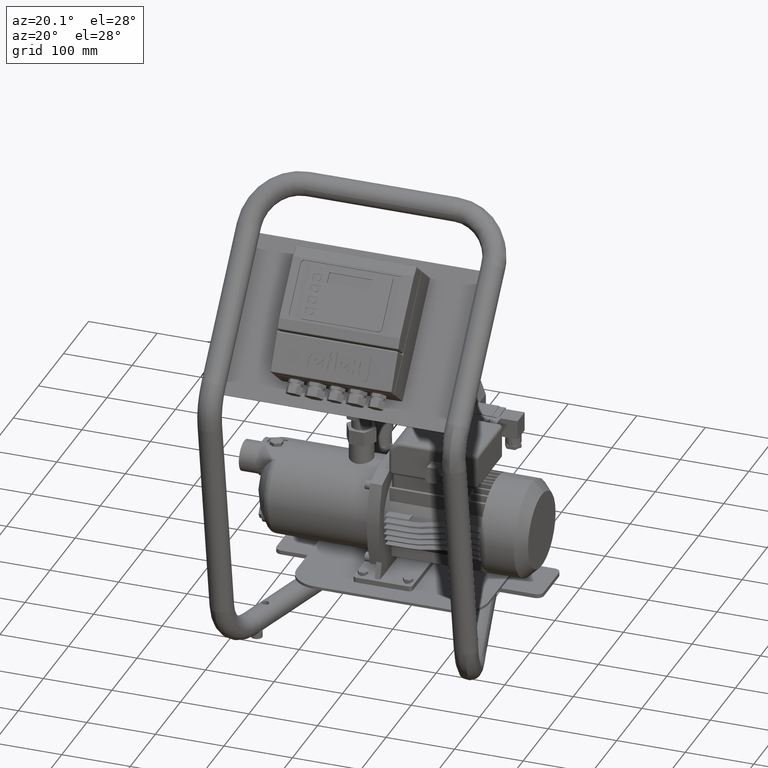
[diagram: clean part render]
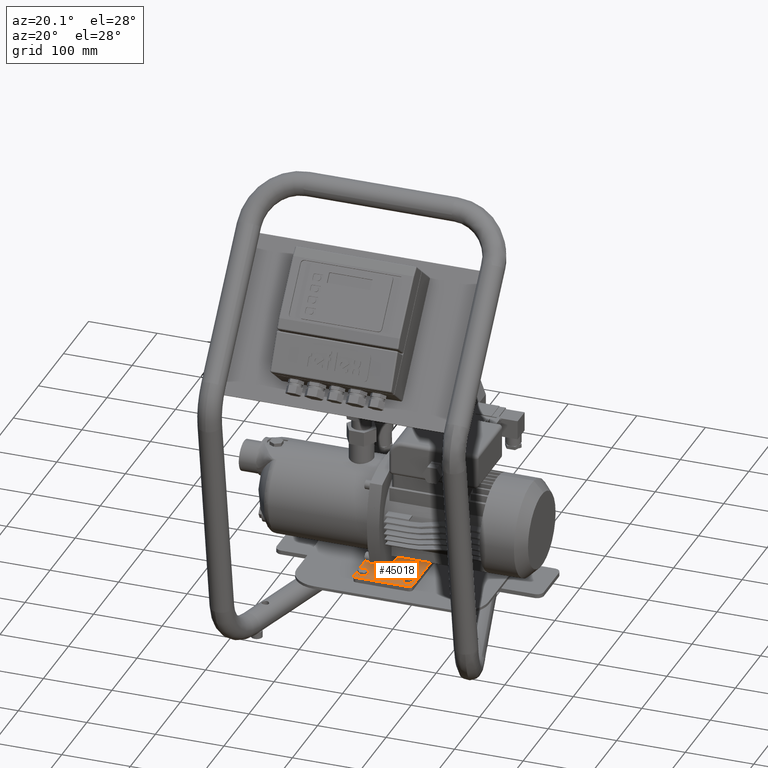
[diagram: same view with one face highlighted and labeled with its STEP entity id]
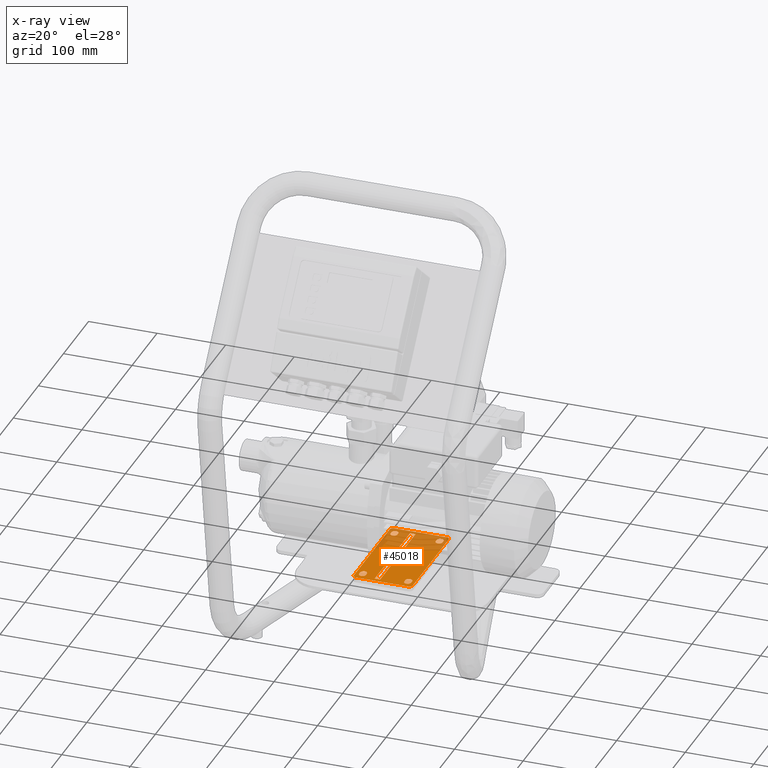
[diagram: x-ray of the same camera — body ghosted, the highlighted face saturated]
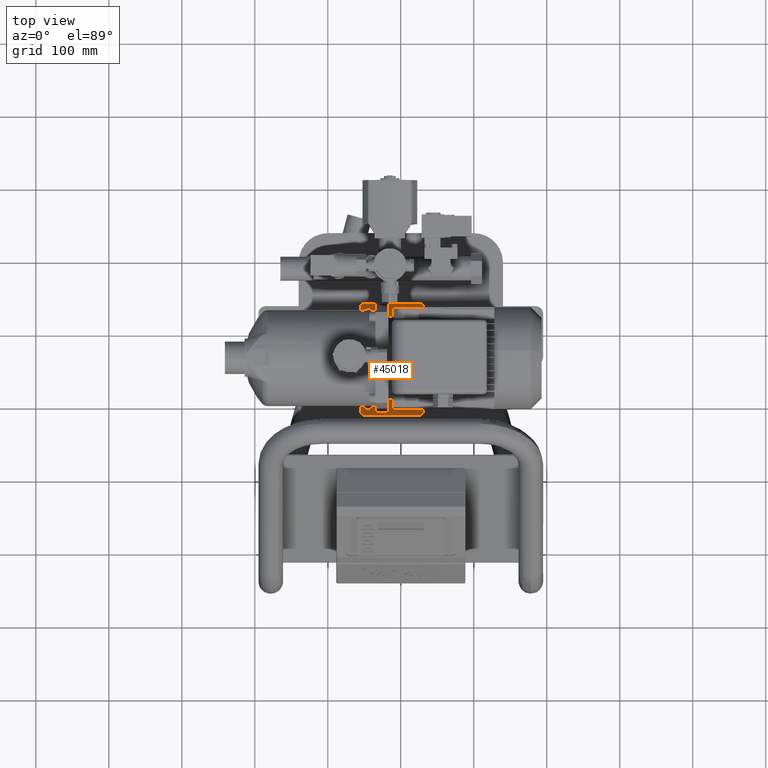
[diagram: same view with one face highlighted and labeled with its STEP entity id]
A machine part, auxiliary view. The second image highlights one B-rep face of the part: STEP entity #45018.
The next image is the same camera in x-ray: the body ghosted, the highlighted face saturated — about 32% of this face is hidden behind the body in this view.
A second angle (top view) of the same face is appended — the face is thin or edge-on in the first view.
In plain terms, the highlighted planar face has unit normal (0, 0, 1).
Its self-contained STEP definition (entity closure, byte-faithful):
#43827=CARTESIAN_POINT('',(-17.000000000000036,-103.500000000000000,60.500000000000014));
#43828=VERTEX_POINT('',#43827);
#43836=CARTESIAN_POINT('',(-25.000000000000036,-103.500000000000000,60.500000000000014));
#43837=VERTEX_POINT('',#43836);
#43844=CARTESIAN_POINT('',(-17.000000000000036,-103.500000000000000,60.500000000000014));
#43845=DIRECTION('',(-1.0,0.0,0.0));
#43846=VECTOR('',#43845,8.0);
#43847=LINE('',#43844,#43846);
#43848=EDGE_CURVE('',#43828,#43837,#43847,.T.);
#43891=CARTESIAN_POINT('',(-17.000000000000043,37.500000000000014,60.499999999999972));
#43892=VERTEX_POINT('',#43891);
#43899=CARTESIAN_POINT('',(-25.000000000000050,37.500000000000014,60.499999999999972));
#43900=VERTEX_POINT('',#43899);
#43901=CARTESIAN_POINT('',(-25.000000000000050,37.500000000000014,60.499999999999972));
#43902=DIRECTION('',(1.0,0.0,0.0));
#43903=VECTOR('',#43902,8.000000000000007);
#43904=LINE('',#43901,#43903);
#43905=EDGE_CURVE('',#43900,#43892,#43904,.T.);
#43923=CARTESIAN_POINT('',(-17.000000000000043,37.500000000000014,60.499999999999972));
#43924=DIRECTION('',(0.0,-1.0,0.0));
#43925=VECTOR('',#43924,141.0);
#43926=LINE('',#43923,#43925);
#43927=EDGE_CURVE('',#43892,#43828,#43926,.T.);
#43945=CARTESIAN_POINT('',(-25.000000000000036,-103.500000000000000,60.500000000000014));
#43946=DIRECTION('',(0.0,1.0,0.0));
#43947=VECTOR('',#43946,141.0);
#43948=LINE('',#43945,#43947);
#43949=EDGE_CURVE('',#43837,#43900,#43948,.T.);
#43974=CARTESIAN_POINT('',(-55.000000000000142,-104.500000000000000,60.500000000000028));
#43975=VERTEX_POINT('',#43974);
#43982=CARTESIAN_POINT('',(-55.000000000000149,38.500000000000028,60.500000000000014));
#43983=VERTEX_POINT('',#43982);
#43984=CARTESIAN_POINT('',(-55.000000000000142,-104.500000000000000,60.500000000000028));
#43985=DIRECTION('',(0.0,1.0,0.0));
#43986=VECTOR('',#43985,143.000000000000030);
#43987=LINE('',#43984,#43986);
#43988=EDGE_CURVE('',#43975,#43983,#43987,.T.);
#44013=CARTESIAN_POINT('',(-50.000000000000128,-109.500000000000000,60.500000000000028));
#44014=VERTEX_POINT('',#44013);
#44021=CARTESIAN_POINT('',(-50.000000000000142,-104.500000000000000,60.500000000000028));
#44022=DIRECTION('',(-6.123032E-017,-6.123032E-017,-1.000000000000000));
#44023=DIRECTION('',(-0.707106781186547,-0.707106781186548,8.659275E-017));
#44024=AXIS2_PLACEMENT_3D('',#44021,#44022,#44023);
#44025=CIRCLE('',#44024,4.999999999999999);
#44026=EDGE_CURVE('',#44014,#43975,#44025,.T.);
#44214=CARTESIAN_POINT('',(-50.000000000000149,43.500000000000028,60.500000000000014));
#44215=VERTEX_POINT('',#44214);
#44216=CARTESIAN_POINT('',(-50.000000000000149,38.500000000000028,60.500000000000014));
#44217=DIRECTION('',(6.123032E-017,-6.123032E-017,-1.000000000000000));
#44218=DIRECTION('',(-0.707106781186548,0.707106781186547,-8.659275E-017));
#44219=AXIS2_PLACEMENT_3D('',#44216,#44217,#44218);
#44220=CIRCLE('',#44219,4.999999999999999);
#44221=EDGE_CURVE('',#43983,#44215,#44220,.T.);
#44323=CARTESIAN_POINT('',(-50.000000000000128,27.499999999999986,60.500000000000014));
#44324=VERTEX_POINT('',#44323);
#44331=CARTESIAN_POINT('',(-40.000000000000128,27.499999999999986,60.500000000000014));
#44332=VERTEX_POINT('',#44331);
#44333=CARTESIAN_POINT('',(-45.000000000000142,27.499999999999986,60.500000000000014));
#44334=DIRECTION('',(0.0,0.0,1.0));
#44335=DIRECTION('',(-1.0,0.0,0.0));
#44336=AXIS2_PLACEMENT_3D('',#44333,#44334,#44335);
#44337=CIRCLE('',#44336,4.999999999999998);
#44338=EDGE_CURVE('',#44324,#44332,#44337,.T.);
#44356=CARTESIAN_POINT('',(-40.000000000000128,31.500000000000028,60.500000000000014));
#44357=VERTEX_POINT('',#44356);
#44358=CARTESIAN_POINT('',(-40.000000000000128,27.499999999999986,60.500000000000014));
#44359=DIRECTION('',(0.0,1.0,0.0));
#44360=VECTOR('',#44359,4.000000000000043);
#44361=LINE('',#44358,#44360);
#44362=EDGE_CURVE('',#44332,#44357,#44361,.T.);
#44381=CARTESIAN_POINT('',(-50.000000000000128,31.500000000000028,60.500000000000014));
#44382=VERTEX_POINT('',#44381);
#44389=CARTESIAN_POINT('',(-50.000000000000128,31.500000000000028,60.500000000000014));
#44390=DIRECTION('',(0.0,-1.0,0.0));
#44391=VECTOR('',#44390,4.000000000000043);
#44392=LINE('',#44389,#44391);
#44393=EDGE_CURVE('',#44382,#44324,#44392,.T.);
#44406=CARTESIAN_POINT('',(-45.000000000000128,31.500000000000028,60.500000000000014));
#44407=DIRECTION('',(0.0,0.0,1.0));
#44408=DIRECTION('',(1.0,0.0,0.0));
#44409=AXIS2_PLACEMENT_3D('',#44406,#44407,#44408);
#44410=CIRCLE('',#44409,4.999999999999998);
#44411=EDGE_CURVE('',#44357,#44382,#44410,.T.);
#44466=CARTESIAN_POINT('',(-50.000000000000114,-97.500000000000000,60.500000000000028));
#44467=VERTEX_POINT('',#44466);
#44474=CARTESIAN_POINT('',(-40.000000000000114,-97.500000000000000,60.500000000000028));
#44475=VERTEX_POINT('',#44474);
#44476=CARTESIAN_POINT('',(-45.000000000000114,-97.500000000000000,60.500000000000028));
#44477=DIRECTION('',(0.0,0.0,1.0));
#44478=DIRECTION('',(1.0,0.0,0.0));
#44479=AXIS2_PLACEMENT_3D('',#44476,#44477,#44478);
#44480=CIRCLE('',#44479,4.999999999999998);
#44481=EDGE_CURVE('',#44467,#44475,#44480,.T.);
#44499=CARTESIAN_POINT('',(-40.000000000000142,-93.500000000000000,60.500000000000028));
#44500=VERTEX_POINT('',#44499);
#44501=CARTESIAN_POINT('',(-40.000000000000114,-97.500000000000000,60.500000000000028));
#44502=DIRECTION('',(0.0,1.0,0.0));
#44503=VECTOR('',#44502,4.0);
#44504=LINE('',#44501,#44503);
#44505=EDGE_CURVE('',#44475,#44500,#44504,.T.);
#44524=CARTESIAN_POINT('',(-50.000000000000128,-93.500000000000000,60.500000000000028));
#44525=VERTEX_POINT('',#44524);
#44532=CARTESIAN_POINT('',(-50.000000000000128,-93.500000000000000,60.500000000000028));
#44533=DIRECTION('',(0.0,-1.0,0.0));
#44534=VECTOR('',#44533,4.0);
#44535=LINE('',#44532,#44534);
#44536=EDGE_CURVE('',#44525,#44467,#44535,.T.);
#44549=CARTESIAN_POINT('',(-45.000000000000128,-93.500000000000000,60.500000000000028));
#44550=DIRECTION('',(0.0,0.0,1.0));
#44551=DIRECTION('',(-1.0,0.0,0.0));
#44552=AXIS2_PLACEMENT_3D('',#44549,#44550,#44551);
#44553=CIRCLE('',#44552,4.999999999999998);
#44554=EDGE_CURVE('',#44500,#44525,#44553,.T.);
#44700=CARTESIAN_POINT('',(25.999999999999957,-109.500000000000010,60.500000000000000));
#44701=VERTEX_POINT('',#44700);
#44708=CARTESIAN_POINT('',(25.999999999999957,-109.500000000000010,60.500000000000000));
#44709=DIRECTION('',(-1.0,0.0,0.0));
#44710=VECTOR('',#44709,76.000000000000085);
#44711=LINE('',#44708,#44710);
#44712=EDGE_CURVE('',#44701,#44014,#44711,.T.);
#44724=CARTESIAN_POINT('',(30.999999999999957,-104.500000000000010,60.500000000000000));
#44725=VERTEX_POINT('',#44724);
#44732=CARTESIAN_POINT('',(25.999999999999957,-104.500000000000010,60.500000000000000));
#44733=DIRECTION('',(6.123032E-017,-6.123032E-017,-1.000000000000000));
#44734=DIRECTION('',(0.707106781186548,-0.707106781186547,8.659275E-017));
#44735=AXIS2_PLACEMENT_3D('',#44732,#44733,#44734);
#44736=CIRCLE('',#44735,4.999999999999999);
#44737=EDGE_CURVE('',#44725,#44701,#44736,.T.);
#44749=CARTESIAN_POINT('',(30.999999999999957,38.500000000000043,60.499999999999986));
#44750=VERTEX_POINT('',#44749);
#44757=CARTESIAN_POINT('',(30.999999999999957,38.500000000000043,60.499999999999986));
#44758=DIRECTION('',(0.0,-1.0,0.0));
#44759=VECTOR('',#44758,143.000000000000060);
#44760=LINE('',#44757,#44759);
#44761=EDGE_CURVE('',#44750,#44725,#44760,.T.);
#44900=CARTESIAN_POINT('',(-12.000000000000043,-33.0,60.499999999999986));
#44901=DIRECTION('',(0.0,0.0,1.0));
#44902=DIRECTION('',(1.0,0.0,0.0));
#44903=AXIS2_PLACEMENT_3D('',#44900,#44901,#44902);
#44904=PLANE('',#44903);
#44905=ORIENTED_EDGE('',*,*,#44712,.F.);
#44906=ORIENTED_EDGE('',*,*,#44737,.F.);
#44907=ORIENTED_EDGE('',*,*,#44761,.F.);
#44908=CARTESIAN_POINT('',(25.999999999999957,43.500000000000043,60.499999999999986));
#44909=VERTEX_POINT('',#44908);
#44910=CARTESIAN_POINT('',(25.999999999999957,38.500000000000043,60.499999999999986));
#44911=DIRECTION('',(-6.123032E-017,-6.123032E-017,-1.000000000000000));
#44912=DIRECTION('',(0.707106781186547,0.707106781186548,-8.659275E-017));
#44913=AXIS2_PLACEMENT_3D('',#44910,#44911,#44912);
#44914=CIRCLE('',#44913,4.999999999999999);
#44915=EDGE_CURVE('',#44909,#44750,#44914,.T.);
#44916=ORIENTED_EDGE('',*,*,#44915,.F.);
#44917=CARTESIAN_POINT('',(-50.000000000000149,43.500000000000028,60.500000000000014));
#44918=DIRECTION('',(1.0,0.0,0.0));
#44919=VECTOR('',#44918,76.000000000000114);
#44920=LINE('',#44917,#44919);
#44921=EDGE_CURVE('',#44215,#44909,#44920,.T.);
#44922=ORIENTED_EDGE('',*,*,#44921,.F.);
#44923=ORIENTED_EDGE('',*,*,#44221,.F.);
#44924=ORIENTED_EDGE('',*,*,#43988,.F.);
#44925=ORIENTED_EDGE('',*,*,#44026,.F.);
#44926=EDGE_LOOP('',(#44905,#44906,#44907,#44916,#44922,#44923,#44924,#44925));
#44927=FACE_OUTER_BOUND('',#44926,.T.);
#44928=ORIENTED_EDGE('',*,*,#43905,.T.);
#44929=ORIENTED_EDGE('',*,*,#43927,.T.);
#44930=ORIENTED_EDGE('',*,*,#43848,.T.);
#44931=ORIENTED_EDGE('',*,*,#43949,.T.);
#44932=EDGE_LOOP('',(#44928,#44929,#44930,#44931));
#44933=FACE_BOUND('',#44932,.T.);
#44934=ORIENTED_EDGE('',*,*,#44411,.F.);
#44935=ORIENTED_EDGE('',*,*,#44362,.F.);
#44936=ORIENTED_EDGE('',*,*,#44338,.F.);
#44937=ORIENTED_EDGE('',*,*,#44393,.F.);
#44938=EDGE_LOOP('',(#44934,#44935,#44936,#44937));
#44939=FACE_BOUND('',#44938,.T.);
#44940=ORIENTED_EDGE('',*,*,#44554,.F.);
#44941=ORIENTED_EDGE('',*,*,#44505,.F.);
#44942=ORIENTED_EDGE('',*,*,#44481,.F.);
#44943=ORIENTED_EDGE('',*,*,#44536,.F.);
#44944=EDGE_LOOP('',(#44940,#44941,#44942,#44943));
#44945=FACE_BOUND('',#44944,.T.);
#44946=CARTESIAN_POINT('',(15.999999999999972,27.500000000000014,60.499999999999986));
#44947=VERTEX_POINT('',#44946);
#44948=CARTESIAN_POINT('',(25.999999999999957,27.500000000000014,60.499999999999986));
#44949=VERTEX_POINT('',#44948);
#44950=CARTESIAN_POINT('',(20.999999999999957,27.500000000000014,60.499999999999986));
#44951=DIRECTION('',(0.0,0.0,1.0));
#44952=DIRECTION('',(1.0,0.0,0.0));
#44953=AXIS2_PLACEMENT_3D('',#44950,#44951,#44952);
#44954=CIRCLE('',#44953,4.999999999999998);
#44955=EDGE_CURVE('',#44947,#44949,#44954,.T.);
#44956=ORIENTED_EDGE('',*,*,#44955,.F.);
#44957=CARTESIAN_POINT('',(15.999999999999957,31.500000000000014,60.499999999999986));
#44958=VERTEX_POINT('',#44957);
#44959=CARTESIAN_POINT('',(15.999999999999957,31.500000000000014,60.499999999999986));
#44960=DIRECTION('',(0.0,-1.0,0.0));
#44961=VECTOR('',#44960,4.0);
#44962=LINE('',#44959,#44961);
#44963=EDGE_CURVE('',#44958,#44947,#44962,.T.);
#44964=ORIENTED_EDGE('',*,*,#44963,.F.);
#44965=CARTESIAN_POINT('',(25.999999999999957,31.500000000000014,60.499999999999986));
#44966=VERTEX_POINT('',#44965);
#44967=CARTESIAN_POINT('',(20.999999999999957,31.500000000000014,60.499999999999986));
#44968=DIRECTION('',(0.0,0.0,1.0));
#44969=DIRECTION('',(-1.0,0.0,0.0));
#44970=AXIS2_PLACEMENT_3D('',#44967,#44968,#44969);
#44971=CIRCLE('',#44970,4.999999999999998);
#44972=EDGE_CURVE('',#44966,#44958,#44971,.T.);
#44973=ORIENTED_EDGE('',*,*,#44972,.F.);
#44974=CARTESIAN_POINT('',(25.999999999999957,27.500000000000014,60.499999999999986));
#44975=DIRECTION('',(0.0,1.0,0.0));
#44976=VECTOR('',#44975,4.0);
#44977=LINE('',#44974,#44976);
#44978=EDGE_CURVE('',#44949,#44966,#44977,.T.);
#44979=ORIENTED_EDGE('',*,*,#44978,.F.);
#44980=EDGE_LOOP('',(#44956,#44964,#44973,#44979));
#44981=FACE_BOUND('',#44980,.T.);
#44982=CARTESIAN_POINT('',(25.999999999999957,-93.499999999999986,60.500000000000000));
#44983=VERTEX_POINT('',#44982);
#44984=CARTESIAN_POINT('',(15.999999999999972,-93.499999999999986,60.500000000000000));
#44985=VERTEX_POINT('',#44984);
#44986=CARTESIAN_POINT('',(20.999999999999972,-93.499999999999986,60.500000000000000));
#44987=DIRECTION('',(0.0,0.0,1.0));
#44988=DIRECTION('',(1.0,0.0,0.0));
#44989=AXIS2_PLACEMENT_3D('',#44986,#44987,#44988);
#44990=CIRCLE('',#44989,4.999999999999998);
#44991=EDGE_CURVE('',#44983,#44985,#44990,.T.);
#44992=ORIENTED_EDGE('',*,*,#44991,.F.);
#44993=CARTESIAN_POINT('',(25.999999999999957,-97.499999999999986,60.500000000000000));
#44994=VERTEX_POINT('',#44993);
#44995=CARTESIAN_POINT('',(25.999999999999957,-97.499999999999986,60.500000000000000));
#44996=DIRECTION('',(0.0,1.0,0.0));
#44997=VECTOR('',#44996,4.0);
#44998=LINE('',#44995,#44997);
#44999=EDGE_CURVE('',#44994,#44983,#44998,.T.);
#45000=ORIENTED_EDGE('',*,*,#44999,.F.);
#45001=CARTESIAN_POINT('',(15.999999999999957,-97.499999999999986,60.500000000000000));
#45002=VERTEX_POINT('',#45001);
#45003=CARTESIAN_POINT('',(20.999999999999957,-97.499999999999986,60.500000000000000));
#45004=DIRECTION('',(0.0,0.0,1.0));
#45005=DIRECTION('',(-1.0,0.0,0.0));
#45006=AXIS2_PLACEMENT_3D('',#45003,#45004,#45005);
#45007=CIRCLE('',#45006,4.999999999999998);
#45008=EDGE_CURVE('',#45002,#44994,#45007,.T.);
#45009=ORIENTED_EDGE('',*,*,#45008,.F.);
#45010=CARTESIAN_POINT('',(15.999999999999972,-93.499999999999986,60.500000000000000));
#45011=DIRECTION('',(0.0,-1.0,0.0));
#45012=VECTOR('',#45011,4.0);
#45013=LINE('',#45010,#45012);
#45014=EDGE_CURVE('',#44985,#45002,#45013,.T.);
#45015=ORIENTED_EDGE('',*,*,#45014,.F.);
#45016=EDGE_LOOP('',(#44992,#45000,#45009,#45015));
#45017=FACE_BOUND('',#45016,.T.);
#45018=ADVANCED_FACE('',(#44927,#44933,#44939,#44945,#44981,#45017),#44904,.T.);